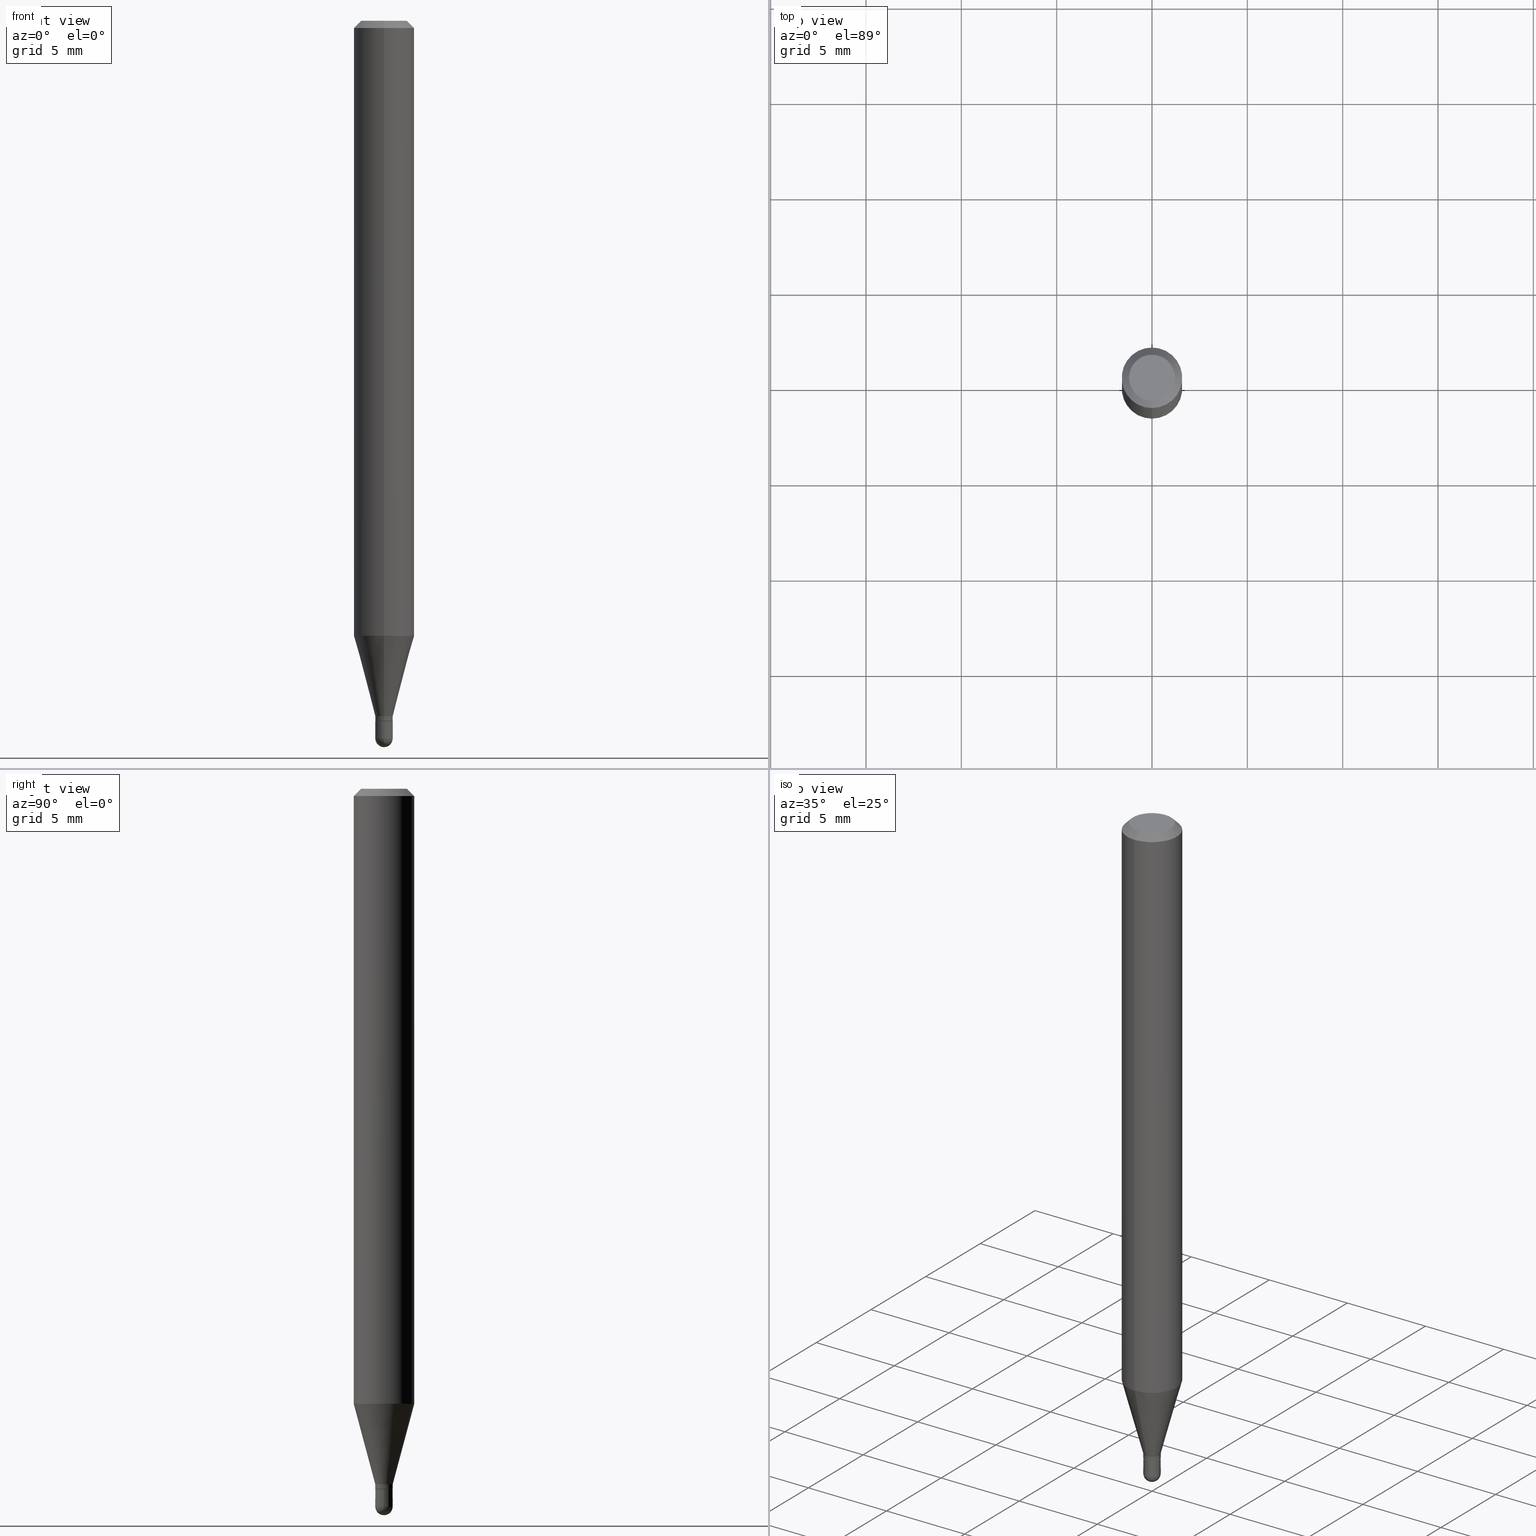
[diagram: canonical four-view strip — front | top / right | iso, engineering-drawing reading convention]
A machine part, canonical four-view strip (front | top / right | iso — engineering-drawing reading convention). The complete STEP part file that produces these views, byte-faithful:
ISO-10303-21;
HEADER;
FILE_DESCRIPTION (( 'STEP AP203' ),
    '1' );
FILE_NAME ('00771.STEP',
    '2024-03-07T18:16:57',
    ( '' ),
    ( '' ),
    'SwSTEP 2.0',
    'SolidWorks 2023',
    '' );
FILE_SCHEMA (( 'CONFIG_CONTROL_DESIGN' ));
ENDSEC;

DATA;
#1 = EDGE_CURVE ( 'NONE', #406, #174, #17, .T. ) ;
#2 = PERSON_AND_ORGANIZATION ( #303, #472 ) ;
#3 = ORIENTED_EDGE ( 'NONE', *, *, #67, .F. ) ;
#4 = CARTESIAN_POINT ( 'NONE',  ( 3.624184770766373010E-29, -5.174375344165542471E-15, -1.482000000000000206 ) ) ;
#5 = APPLICATION_CONTEXT ( 'configuration controlled 3d designs of mechanical parts and assemblies' ) ;
#6 = DIRECTION ( 'NONE',  ( -2.445468806185136597E-29, 3.491481338843145583E-15, 1.000000000000000000 ) ) ;
#7 = CONICAL_SURFACE ( 'NONE', #15, 0.01799999999999992231, 0.2617993877991506846 ) ;
#8 = EDGE_LOOP ( 'NONE', ( #445, #385, #3, #313 ) ) ;
#9 = AXIS2_PLACEMENT_3D ( 'NONE', #271, #511, #316 ) ;
#10 = ADVANCED_FACE ( 'NONE', ( #55 ), #325, .T. ) ;
#11 = CARTESIAN_POINT ( 'NONE',  ( 3.624184770766373010E-29, -5.174375344165542471E-15, -1.482000000000000206 ) ) ;
#12 = APPROVAL ( #407, 'UNSPECIFIED' ) ;
#13 = DIRECTION ( 'NONE',  ( -2.445480475945082204E-29, 3.491464627082701746E-15, 1.000000000000000000 ) ) ;
#14 = CARTESIAN_POINT ( 'NONE',  ( 3.511709963457139332E-29, -5.013743204490759827E-15, -1.436000000000000165 ) ) ;
#15 = AXIS2_PLACEMENT_3D ( 'NONE', #64, #263, #225 ) ;
#16 = EDGE_CURVE ( 'NONE', #66, #111, #396, .T. ) ;
#17 = LINE ( 'NONE', #92, #204 ) ;
#18 = CARTESIAN_POINT ( 'NONE',  ( 0.01799999999999999864, -1.256933281983527929E-16, 8.777118196432682816E-31 ) ) ;
#19 = CARTESIAN_POINT ( 'NONE',  ( 3.622645471445850223E-29, -5.176579708404007627E-15, -1.482000000000000206 ) ) ;
#20 = CARTESIAN_POINT ( 'NONE',  ( 3.536164768216589515E-29, -5.048657850761586702E-15, -1.446000000000000174 ) ) ;
#21 = AXIS2_PLACEMENT_3D ( 'NONE', #474, #358, #278 ) ;
#22 = EDGE_LOOP ( 'NONE', ( #451, #496, #59, #141 ) ) ;
#23 = DIRECTION ( 'NONE',  ( -2.445480475945082204E-29, 3.491464627082701746E-15, 1.000000000000000000 ) ) ;
#24 = CARTESIAN_POINT ( 'NONE',  ( -4.364351673553912750E-16, -0.06250000000000005551, -0.01499999999999979128 ) ) ;
#25 = PRODUCT_RELATED_PRODUCT_CATEGORY ( 'detail', '', ( #485 ) ) ;
#26 = ORIENTED_EDGE ( 'NONE', *, *, #257, .T. ) ;
#27 = CARTESIAN_POINT ( 'NONE',  ( 0.01799999999999999517, -5.237222008264718177E-15, -1.482000000000000206 ) ) ;
#28 = CARTESIAN_POINT ( 'NONE',  ( 0.01799999999999999864, -5.174375344165541682E-15, -1.446000000000000174 ) ) ;
#29 = CONICAL_SURFACE ( 'NONE', #102, 0.01749999999999999820, 0.7853981633974739252 ) ;
#30 = LOCAL_TIME ( 13, 16, 57.00000000000000000, #109 ) ;
#31 = CARTESIAN_POINT ( 'NONE',  ( 0.000000000000000000, 0.000000000000000000, 0.000000000000000000 ) ) ;
#32 = ADVANCED_FACE ( 'NONE', ( #57 ), #360, .F. ) ;
#33 = CALENDAR_DATE ( 2024, 7, 3 ) ;
#34 = ORIENTED_EDGE ( 'NONE', *, *, #331, .T. ) ;
#35 = CARTESIAN_POINT ( 'NONE',  ( 3.668220713917625548E-31, -5.237196940624055972E-17, -0.01500000000000000812 ) ) ;
#36 = SECURITY_CLASSIFICATION_LEVEL ( 'unclassified' ) ;
#37 = ORIENTED_EDGE ( 'NONE', *, *, #356, .F. ) ;
#38 = CARTESIAN_POINT ( 'NONE',  ( 1.243449787580528705E-16, 0.01749999999999494668, -1.446000000000000174 ) ) ;
#39 = PERSON_AND_ORGANIZATION_ROLE ( 'creator' ) ;
#40 = ORIENTED_EDGE ( 'NONE', *, *, #200, .F. ) ;
#41 = ORIENTED_EDGE ( 'NONE', *, *, #130, .F. ) ;
#42 = ADVANCED_FACE ( 'NONE', ( #330 ), #133, .T. ) ;
#43 = AXIS2_PLACEMENT_3D ( 'NONE', #123, #246, #359 ) ;
#44 = VERTEX_POINT ( 'NONE', #283 ) ;
#45 = ORIENTED_EDGE ( 'NONE', *, *, #475, .T. ) ;
#46 = EDGE_CURVE ( 'NONE', #493, #315, #198, .T. ) ;
#47 = AXIS2_PLACEMENT_3D ( 'NONE', #401, #166, #51 ) ;
#48 = CC_DESIGN_PERSON_AND_ORGANIZATION_ASSIGNMENT ( #216, #182, ( #485 ) ) ;
#49 = CIRCLE ( 'NONE', #349, 0.01799999999999999517 ) ;
#50 = LENGTH_MEASURE_WITH_UNIT ( LENGTH_MEASURE( 0.02539999999999999897 ), #476 );
#51 = DIRECTION ( 'NONE',  ( -6.982962677686265922E-15, -1.000000000000000000, 3.483106191921935554E-15 ) ) ;
#52 = CLOSED_SHELL ( 'NONE', ( #319, #89, #42, #317, #63, #122, #292, #211, #458, #32, #376, #489 ) ) ;
#53 = VECTOR ( 'NONE', #494, 39.37007874015748143 ) ;
#54 = DIRECTION ( 'NONE',  ( -6.982962677686265922E-15, -1.000000000000000000, 0.000000000000000000 ) ) ;
#55 = FACE_OUTER_BOUND ( 'NONE', #348, .T. ) ;
#56 = LINE ( 'NONE', #215, #399 ) ;
#57 = FACE_OUTER_BOUND ( 'NONE', #490, .T. ) ;
#58 = DIRECTION ( 'NONE',  ( 1.000000000000000000, 0.000000000000000000, 0.000000000000000000 ) ) ;
#59 = ORIENTED_EDGE ( 'NONE', *, *, #345, .F. ) ;
#60 = LINE ( 'NONE', #218, #267 ) ;
#61 = SPHERICAL_SURFACE ( 'NONE', #165, 0.01799999999999995701 ) ;
#62 = APPROVAL_DATE_TIME ( #226, #386 ) ;
#63 = ADVANCED_FACE ( 'NONE', ( #410 ), #478, .T. ) ;
#64 = CARTESIAN_POINT ( 'NONE',  ( 3.511709963457139332E-29, -5.013743204490759827E-15, -1.436000000000000165 ) ) ;
#65 = DIRECTION ( 'NONE',  ( 1.000000000000000000, -6.982962677686280121E-15, 0.000000000000000000 ) ) ;
#66 = VERTEX_POINT ( 'NONE', #138 ) ;
#67 = EDGE_CURVE ( 'NONE', #100, #236, #425, .T. ) ;
#68 = CLOSED_SHELL ( 'NONE', ( #10, #95, #441, #477, #369 ) ) ;
#69 = DIRECTION ( 'NONE',  ( -2.445480475945082204E-29, 3.491464627082701746E-15, 1.000000000000000000 ) ) ;
#70 = CIRCLE ( 'NONE', #277, 0.01749999999999999820 ) ;
#71 = CARTESIAN_POINT ( 'NONE',  ( 3.534942027978616585E-29, -5.046912118448045753E-15, -1.445500000000000229 ) ) ;
#72 = VERTEX_POINT ( 'NONE', #372 ) ;
#73 = FACE_OUTER_BOUND ( 'NONE', #428, .T. ) ;
#74 = EDGE_CURVE ( 'NONE', #373, #305, #248, .T. ) ;
#75 = EDGE_LOOP ( 'NONE', ( #116, #350, #117, #189 ) ) ;
#76 = ORIENTED_EDGE ( 'NONE', *, *, #331, .F. ) ;
#77 = DIRECTION ( 'NONE',  ( -6.982962677686265133E-15, -1.000000000000000000, 0.000000000000000000 ) ) ;
#78 = ORIENTED_EDGE ( 'NONE', *, *, #257, .F. ) ;
#79 = CIRCLE ( 'NONE', #146, 0.01799999999999999517 ) ;
#80 = CIRCLE ( 'NONE', #361, 0.01799999999999999517 ) ;
#81 = DIRECTION ( 'NONE',  ( -2.445480475945082204E-29, 3.491464627082701746E-15, 1.000000000000000000 ) ) ;
#82 = ORIENTED_EDGE ( 'NONE', *, *, #177, .F. ) ;
#83 = ORIENTED_EDGE ( 'NONE', *, *, #356, .T. ) ;
#84 = DIRECTION ( 'NONE',  ( -2.445468806185136877E-29, 3.491481338843145188E-15, 1.000000000000000000 ) ) ;
#85 = AXIS2_PLACEMENT_3D ( 'NONE', #71, #374, #179 ) ;
#86 = VECTOR ( 'NONE', #379, 39.37007874015748143 ) ;
#87 = PLANE ( 'NONE',  #43 ) ;
#88 = DIRECTION ( 'NONE',  ( -1.000000000000000000, 7.105427357601001070E-15, -4.926315508542082329E-29 ) ) ;
#89 = ADVANCED_FACE ( 'NONE', ( #368 ), #29, .T. ) ;
#90 = CARTESIAN_POINT ( 'NONE',  ( 3.536164768216589515E-29, -5.048657850761586702E-15, -1.446000000000000174 ) ) ;
#91 = MANIFOLD_SOLID_BREP ( 'Body-Move/Copy2[1]', #68 ) ;
#92 = CARTESIAN_POINT ( 'NONE',  ( -1.222018468594742624E-16, -0.01750000000000504624, -1.446000000000000174 ) ) ;
#93 =( NAMED_UNIT ( * ) PLANE_ANGLE_UNIT ( ) SI_UNIT ( $, .RADIAN. ) );
#94 = VECTOR ( 'NONE', #185, 39.37007874015748143 ) ;
#95 = ADVANCED_FACE ( 'NONE', ( #449 ), #61, .T. ) ;
#96 = DIRECTION ( 'NONE',  ( -2.445480475945081924E-29, 3.491464627082701746E-15, 1.000000000000000000 ) ) ;
#97 = CC_DESIGN_DATE_AND_TIME_ASSIGNMENT ( #343, #431, ( #464 ) ) ;
#98 = DIRECTION ( 'NONE',  ( -6.982962677686265133E-15, -1.000000000000000000, 3.491464627082701746E-15 ) ) ;
#99 = CARTESIAN_POINT ( 'NONE',  ( 3.624184770766373010E-29, -5.174375344165542471E-15, -1.482000000000000206 ) ) ;
#100 = VERTEX_POINT ( 'NONE', #24 ) ;
#101 = LINE ( 'NONE', #234, #94 ) ;
#102 = AXIS2_PLACEMENT_3D ( 'NONE', #403, #209, #446 ) ;
#103 = AXIS2_PLACEMENT_3D ( 'NONE', #158, #81, #389 ) ;
#104 = CARTESIAN_POINT ( 'NONE',  ( 2.166967981594113805E-46, -3.093826399424730180E-32, -8.861113400452178794E-18 ) ) ;
#105 = COORDINATED_UNIVERSAL_TIME_OFFSET ( 5, 0, .BEHIND. ) ;
#106 = VERTEX_POINT ( 'NONE', #281 ) ;
#107 = EDGE_CURVE ( 'NONE', #470, #373, #205, .T. ) ;
#108 = LINE ( 'NONE', #38, #162 ) ;
#109 = COORDINATED_UNIVERSAL_TIME_OFFSET ( 5, 0, .BEHIND. ) ;
#110 = CYLINDRICAL_SURFACE ( 'NONE', #322, 0.06250000000000000000 ) ;
#111 = VERTEX_POINT ( 'NONE', #500 ) ;
#112 = AXIS2_PLACEMENT_3D ( 'NONE', #104, #69, #297 ) ;
#113 = CIRCLE ( 'NONE', #147, 0.01799999999999992231 ) ;
#114 = DIRECTION ( 'NONE',  ( -2.445480475945082204E-29, 3.491464627082701746E-15, 1.000000000000000000 ) ) ;
#115 = FACE_OUTER_BOUND ( 'NONE', #512, .T. ) ;
#116 = ORIENTED_EDGE ( 'NONE', *, *, #107, .F. ) ;
#117 = ORIENTED_EDGE ( 'NONE', *, *, #312, .T. ) ;
#118 = APPROVAL ( #506, 'UNSPECIFIED' ) ;
#119 = EDGE_LOOP ( 'NONE', ( #150, #187 ) ) ;
#120 = DATE_AND_TIME ( #353, #30 ) ;
#121 = ORIENTED_EDGE ( 'NONE', *, *, #161, .F. ) ;
#122 = ADVANCED_FACE ( 'NONE', ( #73 ), #7, .T. ) ;
#123 = CARTESIAN_POINT ( 'NONE',  ( 3.316907271900976096E-16, 0.04749999999999999362, -1.702751264866543942E-16 ) ) ;
#124 = AXIS2_PLACEMENT_3D ( 'NONE', #298, #227, #142 ) ;
#125 = DIRECTION ( 'NONE',  ( -6.982962677686265922E-15, -1.000000000000000000, 3.491464627082701746E-15 ) ) ;
#126 =( GEOMETRIC_REPRESENTATION_CONTEXT ( 3 ) GLOBAL_UNCERTAINTY_ASSIGNED_CONTEXT ( ( #395 ) ) GLOBAL_UNIT_ASSIGNED_CONTEXT ( ( #201, #93, #254 ) ) REPRESENTATION_CONTEXT ( 'NONE', 'WORKASPACE' ) );
#127 = CARTESIAN_POINT ( 'NONE',  ( 3.622645471445850223E-29, -5.176579708404007627E-15, -1.482000000000000206 ) ) ;
#128 = EDGE_LOOP ( 'NONE', ( #258, #332, #121, #416 ) ) ;
#129 = DIRECTION ( 'NONE',  ( -1.807323732225332900E-15, -0.2588190451025185745, 0.9659258262890689783 ) ) ;
#130 = EDGE_CURVE ( 'NONE', #217, #66, #79, .T. ) ;
#131 = DIRECTION ( 'NONE',  ( -2.445480475945082204E-29, 3.491464627082701746E-15, 1.000000000000000000 ) ) ;
#132 = DIRECTION ( 'NONE',  ( -2.445480475945082204E-29, 3.491464627082701746E-15, 1.000000000000000000 ) ) ;
#133 = CONICAL_SURFACE ( 'NONE', #417, 0.06250000000000000000, 0.7853981633974483900 ) ;
#134 = AXIS2_PLACEMENT_3D ( 'NONE', #228, #214, #58 ) ;
#135 = PRODUCT_DEFINITION_SHAPE ( 'NONE', 'NONE',  #245 ) ;
#136 = EDGE_CURVE ( 'NONE', #236, #100, #328, .T. ) ;
#137 = DIRECTION ( 'NONE',  ( -6.982962677686265133E-15, -1.000000000000000000, 0.000000000000000000 ) ) ;
#138 = CARTESIAN_POINT ( 'NONE',  ( 1.256933281983888586E-16, 0.01799999999999480488, -1.482000000000000206 ) ) ;
#139 = APPROVAL_STATUS ( 'not_yet_approved' ) ;
#140 = CARTESIAN_POINT ( 'NONE',  ( -1.222018468594742624E-16, -0.01750000000000504624, -1.446000000000000174 ) ) ;
#141 = ORIENTED_EDGE ( 'NONE', *, *, #1, .F. ) ;
#142 = DIRECTION ( 'NONE',  ( -6.982962677686265922E-15, -1.000000000000000000, 0.000000000000000000 ) ) ;
#143 = CARTESIAN_POINT ( 'NONE',  ( 4.440892098500937762E-16, 0.06249999999999993755, -0.01500000000000022669 ) ) ;
#144 = PERSON_AND_ORGANIZATION ( #303, #472 ) ;
#145 = ORIENTED_EDGE ( 'NONE', *, *, #1, .T. ) ;
#146 = AXIS2_PLACEMENT_3D ( 'NONE', #300, #504, #65 ) ;
#147 = AXIS2_PLACEMENT_3D ( 'NONE', #171, #333, #137 ) ;
#148 = CARTESIAN_POINT ( 'NONE',  ( -4.364351673553916201E-16, -0.06250000000000000000, 2.182165391926688591E-16 ) ) ;
#149 = DIRECTION ( 'NONE',  ( -6.982962677686265922E-15, -1.000000000000000000, 3.483106191921935554E-15 ) ) ;
#150 = ORIENTED_EDGE ( 'NONE', *, *, #430, .T. ) ;
#151 = EDGE_CURVE ( 'NONE', #393, #106, #208, .T. ) ;
#152 = DIRECTION ( 'NONE',  ( -6.982962677686265922E-15, -1.000000000000000000, 3.491464627082701746E-15 ) ) ;
#153 = APPROVAL_ROLE ( '' ) ;
#154 = ORIENTED_EDGE ( 'NONE', *, *, #46, .F. ) ;
#155 = ORIENTED_EDGE ( 'NONE', *, *, #16, .T. ) ;
#156 = CC_DESIGN_PERSON_AND_ORGANIZATION_ASSIGNMENT ( #144, #456, ( #245 ) ) ;
#157 = AXIS2_PLACEMENT_3D ( 'NONE', #127, #199, #282 ) ;
#158 = CARTESIAN_POINT ( 'NONE',  ( 2.166967981594113805E-46, -3.093826399424730180E-32, -8.861113400452178794E-18 ) ) ;
#159 = CALENDAR_DATE ( 2024, 7, 3 ) ;
#160 = ORIENTED_EDGE ( 'NONE', *, *, #345, .T. ) ;
#161 = EDGE_CURVE ( 'NONE', #433, #305, #498, .T. ) ;
#162 = VECTOR ( 'NONE', #452, 39.37007874015748143 ) ;
#163 = DIRECTION ( 'NONE',  ( -6.982962677686265133E-15, -1.000000000000000000, 3.491464627082701746E-15 ) ) ;
#164 = FACE_OUTER_BOUND ( 'NONE', #276, .T. ) ;
#165 = AXIS2_PLACEMENT_3D ( 'NONE', #219, #252, #176 ) ;
#166 = DIRECTION ( 'NONE',  ( -2.445480475945082204E-29, 3.491464627082701746E-15, 1.000000000000000000 ) ) ;
#167 = LOCAL_TIME ( 13, 16, 57.00000000000000000, #186 ) ;
#168 = CARTESIAN_POINT ( 'NONE',  ( 0.000000000000000000, 0.000000000000000000, 0.000000000000000000 ) ) ;
#169 = DIRECTION ( 'NONE',  ( -6.982962677686265133E-15, -1.000000000000000000, 0.000000000000000000 ) ) ;
#170 = DIRECTION ( 'NONE',  ( -7.105427357601001859E-15, -1.000000000000000000, 0.000000000000000000 ) ) ;
#171 = CARTESIAN_POINT ( 'NONE',  ( 3.534942027978616585E-29, -5.046912118448045753E-15, -1.445500000000000229 ) ) ;
#172 = AXIS2_PLACEMENT_3D ( 'NONE', #384, #423, #429 ) ;
#173 = AXIS2_PLACEMENT_3D ( 'NONE', #269, #367, #98 ) ;
#174 = VERTEX_POINT ( 'NONE', #261 ) ;
#175 = DIRECTION ( 'NONE',  ( -2.445468806185136597E-29, 3.491481338843145583E-15, 1.000000000000000000 ) ) ;
#176 = DIRECTION ( 'NONE',  ( 6.982962677686265922E-15, 1.000000000000000000, 0.000000000000000000 ) ) ;
#177 = EDGE_CURVE ( 'NONE', #72, #314, #288, .T. ) ;
#178 = ORIENTED_EDGE ( 'NONE', *, *, #420, .T. ) ;
#179 = DIRECTION ( 'NONE',  ( -6.982962677686265133E-15, -1.000000000000000000, 0.000000000000000000 ) ) ;
#180 = ORIENTED_EDGE ( 'NONE', *, *, #312, .F. ) ;
#181 = FACE_OUTER_BOUND ( 'NONE', #8, .T. ) ;
#182 = PERSON_AND_ORGANIZATION_ROLE ( 'design_owner' ) ;
#183 = AXIS2_PLACEMENT_3D ( 'NONE', #188, #114, #457 ) ;
#184 = CARTESIAN_POINT ( 'NONE',  ( 3.536147893743707559E-29, -5.048682015967188692E-15, -1.446000000000000174 ) ) ;
#185 = DIRECTION ( 'NONE',  ( -2.445480475945082204E-29, 3.491464627082701746E-15, 1.000000000000000000 ) ) ;
#186 = COORDINATED_UNIVERSAL_TIME_OFFSET ( 5, 0, .BEHIND. ) ;
#187 = ORIENTED_EDGE ( 'NONE', *, *, #151, .T. ) ;
#188 = CARTESIAN_POINT ( 'NONE',  ( 3.105573709818197943E-29, -4.433893814031715891E-15, -1.269923739063185675 ) ) ;
#189 = ORIENTED_EDGE ( 'NONE', *, *, #420, .F. ) ;
#190 = ORIENTED_EDGE ( 'NONE', *, *, #502, .T. ) ;
#191 = PRODUCT_DEFINITION_FORMATION_WITH_SPECIFIED_SOURCE ( 'ANY', '', #485, .NOT_KNOWN. ) ;
#192 = COORDINATED_UNIVERSAL_TIME_OFFSET ( 5, 0, .BEHIND. ) ;
#193 = EDGE_LOOP ( 'NONE', ( #160, #434, #233, #180 ) ) ;
#194 = EDGE_CURVE ( 'NONE', #470, #174, #398, .T. ) ;
#195 = ORIENTED_EDGE ( 'NONE', *, *, #366, .T. ) ;
#196 = EDGE_LOOP ( 'NONE', ( #78, #268, #242, #311 ) ) ;
#197 = CYLINDRICAL_SURFACE ( 'NONE', #329, 0.01799999999999992231 ) ;
#198 = CIRCLE ( 'NONE', #390, 0.01799999999999995701 ) ;
#199 = DIRECTION ( 'NONE',  ( -1.000000000000000000, 6.982962677686265922E-15, -4.883557194083112901E-29 ) ) ;
#200 = EDGE_CURVE ( 'NONE', #305, #236, #421, .T. ) ;
#201 =( CONVERSION_BASED_UNIT ( 'INCH', #50 ) LENGTH_UNIT ( ) NAMED_UNIT ( #497 ) );
#202 = CC_DESIGN_PERSON_AND_ORGANIZATION_ASSIGNMENT ( #351, #467, ( #191 ) ) ;
#203 = LINE ( 'NONE', #442, #357 ) ;
#204 = VECTOR ( 'NONE', #484, 39.37007874015748143 ) ;
#205 = LINE ( 'NONE', #326, #238 ) ;
#206 = APPLICATION_CONTEXT ( 'configuration controlled 3d designs of mechanical parts and assemblies' ) ;
#207 = LINE ( 'NONE', #362, #444 ) ;
#208 = CIRCLE ( 'NONE', #112, 0.04749999999999999362 ) ;
#209 = DIRECTION ( 'NONE',  ( -2.445480475945082204E-29, 3.491464627082701746E-15, 1.000000000000000000 ) ) ;
#210 = CONICAL_SURFACE ( 'NONE', #310, 0.01749999999999999820, 0.7853981633974739252 ) ;
#211 = ADVANCED_FACE ( 'NONE', ( #377 ), #443, .T. ) ;
#212 = DIRECTION ( 'NONE',  ( -6.982962677686265922E-15, -1.000000000000000000, 0.000000000000000000 ) ) ;
#213 = DIRECTION ( 'NONE',  ( 1.000000000000000000, -6.982962677686266711E-15, 4.876176775795935232E-29 ) ) ;
#214 = DIRECTION ( 'NONE',  ( 0.000000000000000000, 0.000000000000000000, 1.000000000000000000 ) ) ;
#215 = CARTESIAN_POINT ( 'NONE',  ( 4.364351673553919652E-16, 0.06249999999999995143, -0.01500000000000022669 ) ) ;
#216 = PERSON_AND_ORGANIZATION ( #303, #472 ) ;
#217 = VERTEX_POINT ( 'NONE', #27 ) ;
#218 = CARTESIAN_POINT ( 'NONE',  ( -4.287811248607203282E-16, -0.06250000000000005551, -0.01499999999999979128 ) ) ;
#219 = CARTESIAN_POINT ( 'NONE',  ( 3.622645471445850223E-29, -5.176579708404007627E-15, -1.482000000000000206 ) ) ;
#220 = CIRCLE ( 'NONE', #172, 0.01799999999999995701 ) ;
#221 = APPROVAL_PERSON_ORGANIZATION ( #262, #386, #450 ) ;
#222 = EDGE_CURVE ( 'NONE', #433, #100, #455, .T. ) ;
#223 = ADVANCED_BREP_SHAPE_REPRESENTATION ( '00771', ( #91, #432, #134 ), #126 ) ;
#224 = ORIENTED_EDGE ( 'NONE', *, *, #502, .F. ) ;
#225 = DIRECTION ( 'NONE',  ( -6.982962677686265133E-15, -1.000000000000000000, 0.000000000000000000 ) ) ;
#226 = DATE_AND_TIME ( #415, #471 ) ;
#227 = DIRECTION ( 'NONE',  ( -2.445480475945082204E-29, 3.491464627082701746E-15, 1.000000000000000000 ) ) ;
#228 = CARTESIAN_POINT ( 'NONE',  ( 0.000000000000000000, 0.000000000000000000, 0.000000000000000000 ) ) ;
#229 = CARTESIAN_POINT ( 'NONE',  ( 0.000000000000000000, 0.000000000000000000, 0.000000000000000000 ) ) ;
#230 = DIRECTION ( 'NONE',  ( -2.445480475945082204E-29, 3.491464627082701746E-15, 1.000000000000000000 ) ) ;
#231 = PERSON_AND_ORGANIZATION ( #303, #472 ) ;
#232 = EDGE_LOOP ( 'NONE', ( #272, #195, #335, #37 ) ) ;
#233 = ORIENTED_EDGE ( 'NONE', *, *, #323, .F. ) ;
#234 = CARTESIAN_POINT ( 'NONE',  ( -1.256933281983522259E-16, -0.01799999999999992231, 6.284636328748836351E-17 ) ) ;
#235 = ORIENTED_EDGE ( 'NONE', *, *, #461, .T. ) ;
#236 = VERTEX_POINT ( 'NONE', #143 ) ;
#237 = ORIENTED_EDGE ( 'NONE', *, *, #177, .T. ) ;
#238 = VECTOR ( 'NONE', #481, 39.37007874015748143 ) ;
#239 = CC_DESIGN_APPROVAL ( #118, ( #464 ) ) ;
#240 = APPROVAL_DATE_TIME ( #346, #12 ) ;
#241 = CARTESIAN_POINT ( 'NONE',  ( -4.364351673553606573E-16, -0.06250000000000444089, -1.269923739063185453 ) ) ;
#242 = ORIENTED_EDGE ( 'NONE', *, *, #475, .F. ) ;
#243 = CIRCLE ( 'NONE', #371, 0.01799999999999992231 ) ;
#244 = DIRECTION ( 'NONE',  ( 1.000000000000000000, -6.982962677686280121E-15, 0.000000000000000000 ) ) ;
#245 = PRODUCT_DEFINITION ( 'UNKNOWN', '', #191, #473 ) ;
#246 = DIRECTION ( 'NONE',  ( 2.445480475945081924E-29, -3.491464627082701746E-15, -1.000000000000000000 ) ) ;
#247 = DIRECTION ( 'NONE',  ( -2.445468806185136597E-29, 3.491481338843145583E-15, 1.000000000000000000 ) ) ;
#248 = LINE ( 'NONE', #294, #321 ) ;
#249 = VECTOR ( 'NONE', #426, 39.37007874015748143 ) ;
#250 = CARTESIAN_POINT ( 'NONE',  ( 1.278976924368523885E-16, 0.01799999999999481182, -1.445500000000000229 ) ) ;
#251 = APPROVAL_PERSON_ORGANIZATION ( #287, #12, #304 ) ;
#252 = DIRECTION ( 'NONE',  ( -1.000000000000000000, 6.982962677686265922E-15, -4.883557194083112901E-29 ) ) ;
#253 = CARTESIAN_POINT ( 'NONE',  ( 0.000000000000000000, 0.000000000000000000, 0.000000000000000000 ) ) ;
#254 =( NAMED_UNIT ( * ) SI_UNIT ( $, .STERADIAN. ) SOLID_ANGLE_UNIT ( ) );
#255 = DIRECTION ( 'NONE',  ( -2.445480475945082204E-29, 3.491464627082701746E-15, 1.000000000000000000 ) ) ;
#256 = ORIENTED_EDGE ( 'NONE', *, *, #430, .F. ) ;
#257 = EDGE_CURVE ( 'NONE', #493, #66, #220, .T. ) ;
#258 = ORIENTED_EDGE ( 'NONE', *, *, #323, .T. ) ;
#259 = CARTESIAN_POINT ( 'NONE',  ( 4.440892098500625669E-16, 0.06250000000000000000, -2.182165391926688591E-16 ) ) ;
#260 = CIRCLE ( 'NONE', #103, 0.04749999999999999362 ) ;
#261 = CARTESIAN_POINT ( 'NONE',  ( -1.256933281983173188E-16, -0.01800000000000502934, -1.445500000000000229 ) ) ;
#262 = PERSON_AND_ORGANIZATION ( #303, #472 ) ;
#263 = DIRECTION ( 'NONE',  ( -2.445480475945082204E-29, 3.491464627082701746E-15, 1.000000000000000000 ) ) ;
#264 = SHAPE_DEFINITION_REPRESENTATION ( #135, #223 ) ;
#265 = DIRECTION ( 'NONE',  ( -2.445480475945082204E-29, 3.491464627082701746E-15, 1.000000000000000000 ) ) ;
#266 = AXIS2_PLACEMENT_3D ( 'NONE', #14, #132, #482 ) ;
#267 = VECTOR ( 'NONE', #289, 39.37007874015748143 ) ;
#268 = ORIENTED_EDGE ( 'NONE', *, *, #46, .T. ) ;
#269 = CARTESIAN_POINT ( 'NONE',  ( 0.000000000000000000, 0.000000000000000000, 0.000000000000000000 ) ) ;
#270 = PERSON_AND_ORGANIZATION ( #303, #472 ) ;
#271 = CARTESIAN_POINT ( 'NONE',  ( 1.256933281983881437E-16, 0.01799999999999494713, -1.446000000000000174 ) ) ;
#272 = ORIENTED_EDGE ( 'NONE', *, *, #151, .F. ) ;
#273 = ORIENTED_EDGE ( 'NONE', *, *, #483, .T. ) ;
#274 = EDGE_CURVE ( 'NONE', #406, #465, #509, .T. ) ;
#275 = EDGE_LOOP ( 'NONE', ( #439, #34, #145, #352 ) ) ;
#276 = EDGE_LOOP ( 'NONE', ( #154, #26, #41, #295 ) ) ;
#277 = AXIS2_PLACEMENT_3D ( 'NONE', #20, #255, #54 ) ;
#278 = DIRECTION ( 'NONE',  ( -6.982962677686265922E-15, -1.000000000000000000, 4.370956789862821150E-15 ) ) ;
#279 = CC_DESIGN_PERSON_AND_ORGANIZATION_ASSIGNMENT ( #2, #463, ( #464 ) ) ;
#280 = CIRCLE ( 'NONE', #438, 0.01799999999999999864 ) ;
#281 = CARTESIAN_POINT ( 'NONE',  ( 3.840629472727447874E-16, 0.04749999999999999362, -1.747056831868805136E-16 ) ) ;
#282 = DIRECTION ( 'NONE',  ( 6.982962677686265922E-15, 1.000000000000000000, 0.000000000000000000 ) ) ;
#283 = CARTESIAN_POINT ( 'NONE',  ( -1.256933281983171216E-16, -0.01800000000000493566, -1.436000000000000165 ) ) ;
#284 = EDGE_CURVE ( 'NONE', #465, #470, #108, .T. ) ;
#285 = FACE_OUTER_BOUND ( 'NONE', #75, .T. ) ;
#286 = DIRECTION ( 'NONE',  ( 6.982962677686265922E-15, 1.000000000000000000, -3.483106191921935554E-15 ) ) ;
#287 = PERSON_AND_ORGANIZATION ( #303, #472 ) ;
#288 = CIRCLE ( 'NONE', #404, 0.01799999999999999864 ) ;
#289 = DIRECTION ( 'NONE',  ( -4.851104656540964275E-15, -0.7071067811865500152, -0.7071067811865450192 ) ) ;
#290 = AXIS2_PLACEMENT_3D ( 'NONE', #486, #131, #169 ) ;
#291 = DIRECTION ( 'NONE',  ( 1.839019923739603076E-15, 0.2588190451025253469, 0.9659258262890670910 ) ) ;
#292 = ADVANCED_FACE ( 'NONE', ( #419 ), #341, .T. ) ;
#293 = FACE_OUTER_BOUND ( 'NONE', #309, .T. ) ;
#294 = CARTESIAN_POINT ( 'NONE',  ( 1.278976924368525858E-16, 0.01799999999999490896, -1.436000000000000165 ) ) ;
#295 = ORIENTED_EDGE ( 'NONE', *, *, #453, .F. ) ;
#296 = CC_DESIGN_PERSON_AND_ORGANIZATION_ASSIGNMENT ( #231, #39, ( #191 ) ) ;
#297 = DIRECTION ( 'NONE',  ( -6.982962677686266711E-15, -1.000000000000000000, 3.491464627082702140E-15 ) ) ;
#298 = CARTESIAN_POINT ( 'NONE',  ( 3.536164768216589515E-29, -5.048657850761586702E-15, -1.446000000000000174 ) ) ;
#299 = APPLICATION_PROTOCOL_DEFINITION ( 'international standard', 'config_control_design', 1994, #5 ) ;
#300 = CARTESIAN_POINT ( 'NONE',  ( 3.624184770766373010E-29, -5.174375344165542471E-15, -1.482000000000000206 ) ) ;
#301 = CARTESIAN_POINT ( 'NONE',  ( -3.773273898774340269E-16, -0.04749999999999999362, 1.569834563859761591E-16 ) ) ;
#302 = DIRECTION ( 'NONE',  ( 6.982962677686265922E-15, 1.000000000000000000, -3.483106191921935554E-15 ) ) ;
#303 = PERSON ( 'UNSPECIFIED', 'UNSPECIFIED', 'UNSPECIFIED', ('UNSPECIFIED'), ('UNSPECIFIED'), ('UNSPECIFIED') ) ;
#304 = APPROVAL_ROLE ( '' ) ;
#305 = VERTEX_POINT ( 'NONE', #382 ) ;
#306 = FACE_OUTER_BOUND ( 'NONE', #193, .T. ) ;
#307 = APPROVAL_DATE_TIME ( #120, #118 ) ;
#308 = DIRECTION ( 'NONE',  ( 1.000000000000000000, -6.982962677686280121E-15, 0.000000000000000000 ) ) ;
#309 = EDGE_LOOP ( 'NONE', ( #503, #45, #337, #365, #82 ) ) ;
#310 = AXIS2_PLACEMENT_3D ( 'NONE', #405, #23, #212 ) ;
#311 = ORIENTED_EDGE ( 'NONE', *, *, #16, .F. ) ;
#312 = EDGE_CURVE ( 'NONE', #174, #44, #101, .T. ) ;
#313 = ORIENTED_EDGE ( 'NONE', *, *, #222, .F. ) ;
#314 = VERTEX_POINT ( 'NONE', #28 ) ;
#315 = VERTEX_POINT ( 'NONE', #492 ) ;
#316 = DIRECTION ( 'NONE',  ( -1.000000000000000000, 6.982962677686265922E-15, -4.876176775795935793E-29 ) ) ;
#317 = ADVANCED_FACE ( 'NONE', ( #181 ), #110, .T. ) ;
#318 = CC_DESIGN_SECURITY_CLASSIFICATION ( #464, ( #191 ) ) ;
#319 = ADVANCED_FACE ( 'NONE', ( #306 ), #462, .T. ) ;
#320 = CARTESIAN_POINT ( 'NONE',  ( 3.667433559617443502E-29, -5.238324190383952333E-15, -1.500000000000000222 ) ) ;
#321 = VECTOR ( 'NONE', #291, 39.37007874015748143 ) ;
#322 = AXIS2_PLACEMENT_3D ( 'NONE', #31, #265, #152 ) ;
#323 = EDGE_CURVE ( 'NONE', #44, #373, #499, .T. ) ;
#324 = FACE_OUTER_BOUND ( 'NONE', #119, .T. ) ;
#325 = CYLINDRICAL_SURFACE ( 'NONE', #402, 0.01799999999999999864 ) ;
#326 = CARTESIAN_POINT ( 'NONE',  ( 1.278976924368174568E-16, 0.01799999999999992231, -6.284636328748836351E-17 ) ) ;
#327 = DIRECTION ( 'NONE',  ( -2.445468806185136597E-29, 3.491481338843145583E-15, 1.000000000000000000 ) ) ;
#328 = CIRCLE ( 'NONE', #437, 0.06250000000000000000 ) ;
#329 = AXIS2_PLACEMENT_3D ( 'NONE', #355, #13, #163 ) ;
#330 = FACE_OUTER_BOUND ( 'NONE', #232, .T. ) ;
#331 = EDGE_CURVE ( 'NONE', #465, #406, #70, .T. ) ;
#332 = ORIENTED_EDGE ( 'NONE', *, *, #74, .T. ) ;
#333 = DIRECTION ( 'NONE',  ( -2.445480475945082204E-29, 3.491464627082701746E-15, 1.000000000000000000 ) ) ;
#334 = ORIENTED_EDGE ( 'NONE', *, *, #274, .F. ) ;
#335 = ORIENTED_EDGE ( 'NONE', *, *, #67, .T. ) ;
#336 = DIRECTION ( 'NONE',  ( -2.445468806185136597E-29, 3.491481338843145583E-15, 1.000000000000000000 ) ) ;
#337 = ORIENTED_EDGE ( 'NONE', *, *, #453, .T. ) ;
#338 = DIRECTION ( 'NONE',  ( 1.000000000000000000, -6.982962677686279332E-15, 0.000000000000000000 ) ) ;
#339 = DATE_AND_TIME ( #422, #479 ) ;
#340 = CIRCLE ( 'NONE', #21, 0.06250000000000000000 ) ;
#341 = CYLINDRICAL_SURFACE ( 'NONE', #447, 0.06250000000000000000 ) ;
#342 = DIRECTION ( 'NONE',  ( 2.445480475945082204E-29, -3.491464627082701746E-15, -1.000000000000000000 ) ) ;
#343 = DATE_AND_TIME ( #159, #167 ) ;
#344 = ORIENTED_EDGE ( 'NONE', *, *, #400, .T. ) ;
#345 = EDGE_CURVE ( 'NONE', #174, #470, #113, .T. ) ;
#346 = DATE_AND_TIME ( #33, #427 ) ;
#347 = CARTESIAN_POINT ( 'NONE',  ( 3.511709963457139332E-29, -5.013743204490759827E-15, -1.436000000000000165 ) ) ;
#348 = EDGE_LOOP ( 'NONE', ( #155, #235, #375, #392, #460 ) ) ;
#349 = AXIS2_PLACEMENT_3D ( 'NONE', #11, #6, #244 ) ;
#350 = ORIENTED_EDGE ( 'NONE', *, *, #194, .T. ) ;
#351 = PERSON_AND_ORGANIZATION ( #303, #472 ) ;
#352 = ORIENTED_EDGE ( 'NONE', *, *, #194, .F. ) ;
#353 = CALENDAR_DATE ( 2024, 7, 3 ) ;
#354 = PLANE ( 'NONE',  #9 ) ;
#355 = CARTESIAN_POINT ( 'NONE',  ( 0.000000000000000000, 0.000000000000000000, 0.000000000000000000 ) ) ;
#356 = EDGE_CURVE ( 'NONE', #106, #236, #56, .T. ) ;
#357 = VECTOR ( 'NONE', #84, 39.37007874015748143 ) ;
#358 = DIRECTION ( 'NONE',  ( -2.445480475945082204E-29, 3.491464627082701746E-15, 1.000000000000000000 ) ) ;
#359 = DIRECTION ( 'NONE',  ( 6.982962677686265922E-15, 1.000000000000000000, -3.491464627082701746E-15 ) ) ;
#360 = PLANE ( 'NONE',  #436 ) ;
#361 = AXIS2_PLACEMENT_3D ( 'NONE', #4, #440, #308 ) ;
#362 = CARTESIAN_POINT ( 'NONE',  ( -1.256933281983171216E-16, -0.01800000000000493566, -1.436000000000000165 ) ) ;
#363 = DIRECTION ( 'NONE',  ( 1.000000000000000000, -6.982962677686280121E-15, 0.000000000000000000 ) ) ;
#364 = LINE ( 'NONE', #18, #86 ) ;
#365 = ORIENTED_EDGE ( 'NONE', *, *, #383, .T. ) ;
#366 = EDGE_CURVE ( 'NONE', #393, #100, #60, .T. ) ;
#367 = DIRECTION ( 'NONE',  ( -2.445480475945082204E-29, 3.491464627082701746E-15, 1.000000000000000000 ) ) ;
#368 = FACE_OUTER_BOUND ( 'NONE', #22, .T. ) ;
#369 = ADVANCED_FACE ( 'NONE', ( #293 ), #448, .T. ) ;
#370 = CARTESIAN_POINT ( 'NONE',  ( 2.859934511434732179E-16, 0.01799999999999490896, -1.436000000000000165 ) ) ;
#371 = AXIS2_PLACEMENT_3D ( 'NONE', #347, #507, #77 ) ;
#372 = CARTESIAN_POINT ( 'NONE',  ( -0.01799999999999999864, -4.983630987629547040E-15, -1.446000000000000174 ) ) ;
#373 = VERTEX_POINT ( 'NONE', #370 ) ;
#374 = DIRECTION ( 'NONE',  ( -2.445480475945082204E-29, 3.491464627082701746E-15, 1.000000000000000000 ) ) ;
#375 = ORIENTED_EDGE ( 'NONE', *, *, #400, .F. ) ;
#376 = ADVANCED_FACE ( 'NONE', ( #491 ), #210, .T. ) ;
#377 = FACE_OUTER_BOUND ( 'NONE', #394, .T. ) ;
#378 = APPLICATION_PROTOCOL_DEFINITION ( 'international standard', 'config_control_design', 1994, #206 ) ;
#379 = DIRECTION ( 'NONE',  ( -2.445468806185136877E-29, 3.491481338843145188E-15, 1.000000000000000000 ) ) ;
#380 = AXIS2_PLACEMENT_3D ( 'NONE', #459, #342, #302 ) ;
#381 = DIRECTION ( 'NONE',  ( -6.982962677686265922E-15, -1.000000000000000000, 3.491464627082701746E-15 ) ) ;
#382 = CARTESIAN_POINT ( 'NONE',  ( 4.440892098500933817E-16, 0.06249999999999555217, -1.269923739063185897 ) ) ;
#383 = EDGE_CURVE ( 'NONE', #217, #314, #364, .T. ) ;
#384 = CARTESIAN_POINT ( 'NONE',  ( 3.622645471445850223E-29, -5.176579708404007627E-15, -1.482000000000000206 ) ) ;
#385 = ORIENTED_EDGE ( 'NONE', *, *, #200, .T. ) ;
#386 = APPROVAL ( #139, 'UNSPECIFIED' ) ;
#387 = ORIENTED_EDGE ( 'NONE', *, *, #74, .F. ) ;
#388 = AXIS2_PLACEMENT_3D ( 'NONE', #99, #247, #363 ) ;
#389 = DIRECTION ( 'NONE',  ( -6.982962677686266711E-15, -1.000000000000000000, 3.491464627082702140E-15 ) ) ;
#390 = AXIS2_PLACEMENT_3D ( 'NONE', #19, #88, #170 ) ;
#391 = CC_DESIGN_APPROVAL ( #12, ( #191 ) ) ;
#392 = ORIENTED_EDGE ( 'NONE', *, *, #383, .F. ) ;
#393 = VERTEX_POINT ( 'NONE', #301 ) ;
#394 = EDGE_LOOP ( 'NONE', ( #468, #256, #83, #466 ) ) ;
#395 = UNCERTAINTY_MEASURE_WITH_UNIT (LENGTH_MEASURE( 1.000000000000000082E-05 ), #201, 'distance_accuracy_value', 'NONE');
#396 = CIRCLE ( 'NONE', #388, 0.01799999999999999517 ) ;
#397 = CARTESIAN_POINT ( 'NONE',  ( 1.261213355974528268E-16, 0.01749999999999494668, -1.446000000000000174 ) ) ;
#398 = CIRCLE ( 'NONE', #85, 0.01799999999999992231 ) ;
#399 = VECTOR ( 'NONE', #413, 39.37007874015748143 ) ;
#400 = EDGE_CURVE ( 'NONE', #314, #72, #280, .T. ) ;
#401 = CARTESIAN_POINT ( 'NONE',  ( 3.668220713917625548E-31, -5.237196940624055972E-17, -0.01500000000000000812 ) ) ;
#402 = AXIS2_PLACEMENT_3D ( 'NONE', #168, #327, #213 ) ;
#403 = CARTESIAN_POINT ( 'NONE',  ( 3.536164768216589515E-29, -5.048657850761586702E-15, -1.446000000000000174 ) ) ;
#404 = AXIS2_PLACEMENT_3D ( 'NONE', #184, #336, #338 ) ;
#405 = CARTESIAN_POINT ( 'NONE',  ( 3.536164768216589515E-29, -5.048657850761586702E-15, -1.446000000000000174 ) ) ;
#406 = VERTEX_POINT ( 'NONE', #140 ) ;
#407 = APPROVAL_STATUS ( 'not_yet_approved' ) ;
#408 = CC_DESIGN_DATE_AND_TIME_ASSIGNMENT ( #339, #501, ( #245 ) ) ;
#409 = DIRECTION ( 'NONE',  ( 1.000000000000000000, -6.982962677686266711E-15, 4.876176775795935232E-29 ) ) ;
#410 = FACE_OUTER_BOUND ( 'NONE', #128, .T. ) ;
#411 = MECHANICAL_CONTEXT ( 'NONE', #206, 'mechanical' ) ;
#412 = CARTESIAN_POINT ( 'NONE',  ( 3.536147893743707559E-29, -5.048682015967188692E-15, -1.446000000000000174 ) ) ;
#413 = DIRECTION ( 'NONE',  ( 4.937700262164548042E-15, 0.7071067811865451302, -0.7071067811865499042 ) ) ;
#414 = CARTESIAN_POINT ( 'NONE',  ( 3.668220713917625548E-31, -5.237196940624055972E-17, -0.01500000000000000812 ) ) ;
#415 = CALENDAR_DATE ( 2024, 7, 3 ) ;
#416 = ORIENTED_EDGE ( 'NONE', *, *, #483, .F. ) ;
#417 = AXIS2_PLACEMENT_3D ( 'NONE', #414, #487, #286 ) ;
#418 = CC_DESIGN_APPROVAL ( #386, ( #245 ) ) ;
#419 = FACE_OUTER_BOUND ( 'NONE', #469, .T. ) ;
#420 = EDGE_CURVE ( 'NONE', #373, #44, #243, .T. ) ;
#421 = LINE ( 'NONE', #259, #249 ) ;
#422 = CALENDAR_DATE ( 2024, 7, 3 ) ;
#423 = DIRECTION ( 'NONE',  ( 1.000000000000000000, -6.982962677686265922E-15, 4.883557194083112340E-29 ) ) ;
#424 = DIRECTION ( 'NONE',  ( -2.445468806185136597E-29, 3.491481338843145583E-15, 1.000000000000000000 ) ) ;
#425 = CIRCLE ( 'NONE', #47, 0.06250000000000000000 ) ;
#426 = DIRECTION ( 'NONE',  ( -2.445480475945082204E-29, 3.491464627082701746E-15, 1.000000000000000000 ) ) ;
#427 = LOCAL_TIME ( 13, 16, 57.00000000000000000, #192 ) ;
#428 = EDGE_LOOP ( 'NONE', ( #387, #178, #273, #224 ) ) ;
#429 = DIRECTION ( 'NONE',  ( 6.982962677686266711E-15, 1.000000000000000000, 0.000000000000000000 ) ) ;
#430 = EDGE_CURVE ( 'NONE', #106, #393, #260, .T. ) ;
#431 = DATE_TIME_ROLE ( 'classification_date' ) ;
#432 = MANIFOLD_SOLID_BREP ( 'Body-Move/Copy2[2]', #52 ) ;
#433 = VERTEX_POINT ( 'NONE', #241 ) ;
#434 = ORIENTED_EDGE ( 'NONE', *, *, #107, .T. ) ;
#435 = ORIENTED_EDGE ( 'NONE', *, *, #222, .T. ) ;
#436 = AXIS2_PLACEMENT_3D ( 'NONE', #90, #96, #125 ) ;
#437 = AXIS2_PLACEMENT_3D ( 'NONE', #35, #505, #149 ) ;
#438 = AXIS2_PLACEMENT_3D ( 'NONE', #412, #424, #488 ) ;
#439 = ORIENTED_EDGE ( 'NONE', *, *, #284, .F. ) ;
#440 = DIRECTION ( 'NONE',  ( -2.445468806185136597E-29, 3.491481338843145583E-15, 1.000000000000000000 ) ) ;
#441 = ADVANCED_FACE ( 'NONE', ( #115 ), #354, .F. ) ;
#442 = CARTESIAN_POINT ( 'NONE',  ( -0.01799999999999999864, 1.278976924368180238E-16, -8.854083162458829188E-31 ) ) ;
#443 = CONICAL_SURFACE ( 'NONE', #380, 0.06250000000000000000, 0.7853981633974483900 ) ;
#444 = VECTOR ( 'NONE', #129, 39.37007874015748143 ) ;
#445 = ORIENTED_EDGE ( 'NONE', *, *, #161, .T. ) ;
#446 = DIRECTION ( 'NONE',  ( -6.982962677686265922E-15, -1.000000000000000000, 0.000000000000000000 ) ) ;
#447 = AXIS2_PLACEMENT_3D ( 'NONE', #229, #230, #381 ) ;
#448 = CYLINDRICAL_SURFACE ( 'NONE', #510, 0.01799999999999999864 ) ;
#449 = FACE_OUTER_BOUND ( 'NONE', #196, .T. ) ;
#450 = APPROVAL_ROLE ( '' ) ;
#451 = ORIENTED_EDGE ( 'NONE', *, *, #274, .T. ) ;
#452 = DIRECTION ( 'NONE',  ( 5.024295867788190974E-15, 0.7071067811865681119, 0.7071067811865270336 ) ) ;
#453 = EDGE_CURVE ( 'NONE', #315, #217, #80, .T. ) ;
#454 = APPROVAL_PERSON_ORGANIZATION ( #270, #118, #153 ) ;
#455 = LINE ( 'NONE', #148, #53 ) ;
#456 = PERSON_AND_ORGANIZATION_ROLE ( 'creator' ) ;
#457 = DIRECTION ( 'NONE',  ( -6.982962677686265922E-15, -1.000000000000000000, 4.370956789862821150E-15 ) ) ;
#458 = ADVANCED_FACE ( 'NONE', ( #324 ), #87, .F. ) ;
#459 = CARTESIAN_POINT ( 'NONE',  ( 3.668220713917625548E-31, -5.237196940624055972E-17, -0.01500000000000000812 ) ) ;
#460 = ORIENTED_EDGE ( 'NONE', *, *, #130, .T. ) ;
#461 = EDGE_CURVE ( 'NONE', #111, #72, #203, .T. ) ;
#462 = CYLINDRICAL_SURFACE ( 'NONE', #173, 0.01799999999999992231 ) ;
#463 = PERSON_AND_ORGANIZATION_ROLE ( 'classification_officer' ) ;
#464 = SECURITY_CLASSIFICATION ( '', '', #36 ) ;
#465 = VERTEX_POINT ( 'NONE', #397 ) ;
#466 = ORIENTED_EDGE ( 'NONE', *, *, #136, .T. ) ;
#467 = PERSON_AND_ORGANIZATION_ROLE ( 'design_supplier' ) ;
#468 = ORIENTED_EDGE ( 'NONE', *, *, #366, .F. ) ;
#469 = EDGE_LOOP ( 'NONE', ( #40, #190, #435, #508 ) ) ;
#470 = VERTEX_POINT ( 'NONE', #250 ) ;
#471 = LOCAL_TIME ( 13, 16, 57.00000000000000000, #495 ) ;
#472 = ORGANIZATION ( 'UNSPECIFIED', 'UNSPECIFIED', '' ) ;
#473 = DESIGN_CONTEXT ( 'detailed design', #5, 'design' ) ;
#474 = CARTESIAN_POINT ( 'NONE',  ( 3.105573709818197943E-29, -4.433893814031715891E-15, -1.269923739063185675 ) ) ;
#475 = EDGE_CURVE ( 'NONE', #111, #315, #49, .T. ) ;
#476 =( LENGTH_UNIT ( ) NAMED_UNIT ( * ) SI_UNIT ( $, .METRE. ) );
#477 = ADVANCED_FACE ( 'NONE', ( #164 ), #480, .T. ) ;
#478 = CONICAL_SURFACE ( 'NONE', #266, 0.01799999999999992231, 0.2617993877991506846 ) ;
#479 = LOCAL_TIME ( 13, 16, 57.00000000000000000, #105 ) ;
#480 = SPHERICAL_SURFACE ( 'NONE', #157, 0.01799999999999995701 ) ;
#481 = DIRECTION ( 'NONE',  ( -2.445480475945082204E-29, 3.491464627082701746E-15, 1.000000000000000000 ) ) ;
#482 = DIRECTION ( 'NONE',  ( -6.982962677686265133E-15, -1.000000000000000000, 0.000000000000000000 ) ) ;
#483 = EDGE_CURVE ( 'NONE', #44, #433, #207, .T. ) ;
#484 = DIRECTION ( 'NONE',  ( -4.937700262164674260E-15, -0.7071067811865632269, 0.7071067811865319186 ) ) ;
#485 = PRODUCT ( '00771', '00771', '', ( #411 ) ) ;
#486 = CARTESIAN_POINT ( 'NONE',  ( 3.511709963457139332E-29, -5.013743204490759827E-15, -1.436000000000000165 ) ) ;
#487 = DIRECTION ( 'NONE',  ( 2.445480475945082204E-29, -3.491464627082701746E-15, -1.000000000000000000 ) ) ;
#488 = DIRECTION ( 'NONE',  ( 1.000000000000000000, -6.982962677686279332E-15, 0.000000000000000000 ) ) ;
#489 = ADVANCED_FACE ( 'NONE', ( #285 ), #197, .T. ) ;
#490 = EDGE_LOOP ( 'NONE', ( #334, #76 ) ) ;
#491 = FACE_OUTER_BOUND ( 'NONE', #275, .T. ) ;
#492 = CARTESIAN_POINT ( 'NONE',  ( -1.278976924367816376E-16, -0.01800000000000515077, -1.482000000000000206 ) ) ;
#493 = VERTEX_POINT ( 'NONE', #320 ) ;
#494 = DIRECTION ( 'NONE',  ( -2.445480475945082204E-29, 3.491464627082701746E-15, 1.000000000000000000 ) ) ;
#495 = COORDINATED_UNIVERSAL_TIME_OFFSET ( 5, 0, .BEHIND. ) ;
#496 = ORIENTED_EDGE ( 'NONE', *, *, #284, .T. ) ;
#497 = DIMENSIONAL_EXPONENTS ( 1.000000000000000000, 0.000000000000000000, 0.000000000000000000, 0.000000000000000000, 0.000000000000000000, 0.000000000000000000, 0.000000000000000000 ) ;
#498 = CIRCLE ( 'NONE', #183, 0.06250000000000000000 ) ;
#499 = CIRCLE ( 'NONE', #290, 0.01799999999999992231 ) ;
#500 = CARTESIAN_POINT ( 'NONE',  ( -0.01799999999999999517, -4.983630987629547040E-15, -1.482000000000000206 ) ) ;
#501 = DATE_TIME_ROLE ( 'creation_date' ) ;
#502 = EDGE_CURVE ( 'NONE', #305, #433, #340, .T. ) ;
#503 = ORIENTED_EDGE ( 'NONE', *, *, #461, .F. ) ;
#504 = DIRECTION ( 'NONE',  ( -2.445468806185136597E-29, 3.491481338843145583E-15, 1.000000000000000000 ) ) ;
#505 = DIRECTION ( 'NONE',  ( -2.445480475945082204E-29, 3.491464627082701746E-15, 1.000000000000000000 ) ) ;
#506 = APPROVAL_STATUS ( 'not_yet_approved' ) ;
#507 = DIRECTION ( 'NONE',  ( -2.445480475945082204E-29, 3.491464627082701746E-15, 1.000000000000000000 ) ) ;
#508 = ORIENTED_EDGE ( 'NONE', *, *, #136, .F. ) ;
#509 = CIRCLE ( 'NONE', #124, 0.01749999999999999820 ) ;
#510 = AXIS2_PLACEMENT_3D ( 'NONE', #253, #175, #409 ) ;
#511 = DIRECTION ( 'NONE',  ( 2.438088387897960049E-29, -3.491481338843145188E-15, -1.000000000000000000 ) ) ;
#512 = EDGE_LOOP ( 'NONE', ( #344, #237 ) ) ;
ENDSEC;
END-ISO-10303-21;
